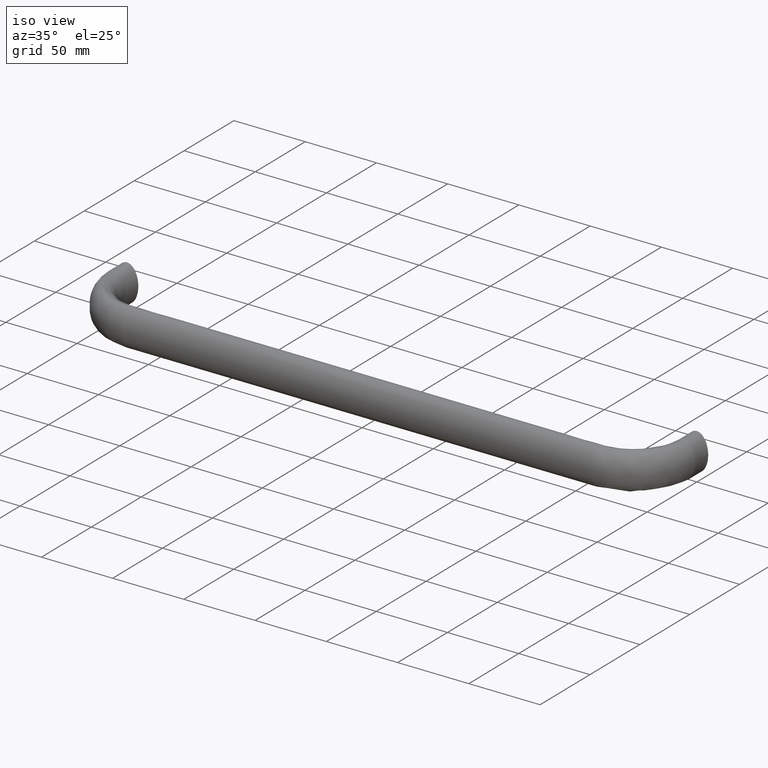
[diagram: clean part render]
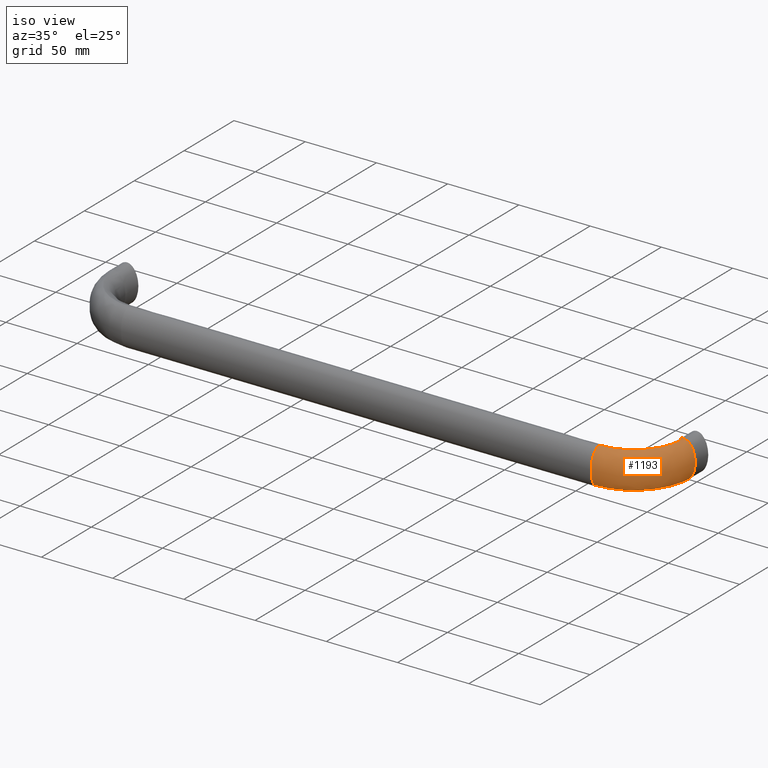
[diagram: same view with one face highlighted and labeled with its STEP entity id]
A machine part, iso view. The second image highlights one B-rep face of the part: STEP entity #1193.
In plain terms, the highlighted face is a freeform B-spline surface patch.
Its self-contained STEP definition (entity closure, byte-faithful):
#899=CARTESIAN_POINT('',(400.0,-13.0,13.0));
#900=VERTEX_POINT('',#899);
#908=CARTESIAN_POINT('',(404.702026031346290,-13.0,-10.516608836256710));
#909=VERTEX_POINT('',#908);
#910=CARTESIAN_POINT('',(404.702026031346290,-13.0,-10.516608836256710));
#911=CARTESIAN_POINT('',(405.040959230750500,-13.0,-10.116656518417621));
#912=CARTESIAN_POINT('',(405.360662054242880,-13.0,-9.673700472705884));
#913=CARTESIAN_POINT('',(407.137815228878480,-13.0,-6.785826563922671));
#914=CARTESIAN_POINT('',(408.0,-13.0,-3.403392041388941));
#915=CARTESIAN_POINT('',(408.0,-13.0,3.403392041388945));
#916=CARTESIAN_POINT('',(407.137815228878480,-13.0,6.785826563922671));
#917=CARTESIAN_POINT('',(404.916373759799510,-13.0,10.395668951176340));
#918=CARTESIAN_POINT('',(404.028951842966990,-13.0,11.359223048605340));
#919=CARTESIAN_POINT('',(402.093983074874470,-13.0,12.661644796688099));
#920=CARTESIAN_POINT('',(401.047197551196520,-13.0,13.0));
#921=CARTESIAN_POINT('',(400.0,-13.0,13.0));
#922=B_SPLINE_CURVE_WITH_KNOTS('',3,(#910,#911,#912,#913,#914,#915,#916,#917,#918,#919,#920,#921),.UNSPECIFIED.,.F.,.U.,(4,2,2,2,2,4),(0.600000000052966,0.625000000000000,0.750000000000000,0.875000000000000,0.937500000000000,1.0),.UNSPECIFIED.);
#923=EDGE_CURVE('',#909,#900,#922,.T.);
#1024=CARTESIAN_POINT('',(365.0,-52.702026030269117,-10.516608837527739));
#1025=CARTESIAN_POINT('',(365.0,-53.040959229395668,-10.116656520294541));
#1026=CARTESIAN_POINT('',(365.0,-53.360662053615137,-9.673700473725608));
#1027=CARTESIAN_POINT('',(365.0,-55.137815228878502,-6.785826563922671));
#1028=CARTESIAN_POINT('',(365.0,-56.0,-3.403392041388941));
#1029=CARTESIAN_POINT('',(365.0,-56.0,3.403392041388945));
#1030=CARTESIAN_POINT('',(365.0,-55.137815228878502,6.785826563922671));
#1031=CARTESIAN_POINT('',(365.0,-52.916373759799299,10.395668951176340));
#1032=CARTESIAN_POINT('',(365.0,-52.028951842967203,11.359223048605340));
#1033=CARTESIAN_POINT('',(365.0,-50.093983074874203,12.661644796688099));
#1034=CARTESIAN_POINT('',(365.0,-49.047197551196597,13.0));
#1035=CARTESIAN_POINT('',(365.0,-48.0,13.0));
#1036=CARTESIAN_POINT('',(370.197832790003420,-52.701986561494763,-10.516608837527739));
#1037=CARTESIAN_POINT('',(370.242206295993530,-53.040919265955779,-10.116656520294541));
#1038=CARTESIAN_POINT('',(370.284062140216180,-53.360621621347363,-9.673700473725608));
#1039=CARTESIAN_POINT('',(370.516728982144510,-55.137772177372803,-6.785826563922671));
#1040=CARTESIAN_POINT('',(370.629607157548490,-55.999955664275902,-3.403392041388941));
#1041=CARTESIAN_POINT('',(370.629607157548490,-55.999955664275902,3.403392041388945));
#1042=CARTESIAN_POINT('',(370.516728982144510,-55.137772177372803,6.785826563922671));
#1043=CARTESIAN_POINT('',(370.225895429733610,-52.916333982357898,10.395668951176340));
#1044=CARTESIAN_POINT('',(370.109713179547500,-52.028913358659501,11.359223048605340));
#1045=CARTESIAN_POINT('',(369.856384947094000,-50.093947378889602,12.661644796688099));
#1046=CARTESIAN_POINT('',(369.719338638655470,-49.047163344776813,13.0));
#1047=CARTESIAN_POINT('',(369.582238387206080,-47.999967262404901,13.0));
#1048=CARTESIAN_POINT('',(375.391921456345070,-51.668688504635632,-10.516608837527739));
#1049=CARTESIAN_POINT('',(375.480636505344020,-51.998800179312731,-10.116656520294541));
#1050=CARTESIAN_POINT('',(375.564318044329130,-52.310181994295803,-9.673700473725608));
#1051=CARTESIAN_POINT('',(376.029484134343480,-54.041080626693400,-6.785826563922671));
#1052=CARTESIAN_POINT('',(376.255159177119480,-54.880825034756199,-3.403392041388941));
#1053=CARTESIAN_POINT('',(376.255159177119480,-54.880825034756199,3.403392041388945));
#1054=CARTESIAN_POINT('',(376.029484134343480,-54.041080626709302,6.785826563922671));
#1055=CARTESIAN_POINT('',(375.448026521825510,-51.877457336212302,10.395668951176340));
#1056=CARTESIAN_POINT('',(375.215745709427490,-51.013132637800702,11.359223048605340));
#1057=CARTESIAN_POINT('',(374.709271721378000,-49.128525930261098,12.661644796688099));
#1058=CARTESIAN_POINT('',(374.435277821626020,-48.108985433380901,13.0));
#1059=CARTESIAN_POINT('',(374.161176074402820,-47.089043632954393,13.0));
#1060=CARTESIAN_POINT('',(384.994693729877890,-47.691089992556300,-10.516608837527739));
#1061=CARTESIAN_POINT('',(385.165386920847480,-47.987245209002360,-10.116656520294541));
#1062=CARTESIAN_POINT('',(385.326395330080520,-48.266597185584132,-9.673700473725608));
#1063=CARTESIAN_POINT('',(386.221403393962480,-49.819449442713100,-6.785826563922671));
#1064=CARTESIAN_POINT('',(386.655616006278020,-50.572814761214403,-3.403392041388941));
#1065=CARTESIAN_POINT('',(386.655616006278020,-50.572814761214403,3.403392041388945));
#1066=CARTESIAN_POINT('',(386.221403393962480,-49.819449442697199,6.785826563922671));
#1067=CARTESIAN_POINT('',(385.102643314110030,-47.878384121285997,10.395668951176340));
#1068=CARTESIAN_POINT('',(384.655720796329490,-47.102966928371401,11.359223048605340));
#1069=CARTESIAN_POINT('',(383.681233804992470,-45.412217554131601,12.661644796688099));
#1070=CARTESIAN_POINT('',(383.154052750442470,-44.497550610502053,13.0));
#1071=CARTESIAN_POINT('',(382.626664191153620,-43.582523642835604,13.0));
#1072=CARTESIAN_POINT('',(389.398749979083680,-44.748393686684693,-10.516608837527739));
#1073=CARTESIAN_POINT('',(389.607040265799180,-45.019427326912250,-10.116656520294541));
#1074=CARTESIAN_POINT('',(389.803512588642490,-45.275083074010418,-9.673700473725608));
#1075=CARTESIAN_POINT('',(390.895656248174480,-46.696213537388303,-6.785826563922671));
#1076=CARTESIAN_POINT('',(391.425509073508980,-47.385674108581703,-3.403392041388941));
#1077=CARTESIAN_POINT('',(391.425509073508980,-47.385674108581703,3.403392041388945));
#1078=CARTESIAN_POINT('',(390.895656248174480,-46.696213537388303,6.785826563922671));
#1079=CARTESIAN_POINT('',(389.530476673759490,-44.919800458165952,10.395668951176340));
#1080=CARTESIAN_POINT('',(388.985114443196490,-44.210158578413598,11.359223048605340));
#1081=CARTESIAN_POINT('',(387.795985728338510,-42.662828218666156,12.661644796688099));
#1082=CARTESIAN_POINT('',(387.152687115535510,-41.825748547051958,13.0));
#1083=CARTESIAN_POINT('',(386.509135292397100,-40.988339390709008,13.0));
#1084=CARTESIAN_POINT('',(396.748393686612590,-37.398749979011477,-10.516608837527739));
#1085=CARTESIAN_POINT('',(397.019427326840510,-37.607040265727193,-10.116656520294541));
#1086=CARTESIAN_POINT('',(397.275083073937420,-37.803512588569212,-9.673700473725608));
#1087=CARTESIAN_POINT('',(398.696213537277000,-38.895656248063197,-6.785826563922671));
#1088=CARTESIAN_POINT('',(399.385674108533980,-39.425509073461299,-3.403392041388941));
#1089=CARTESIAN_POINT('',(399.385674108533980,-39.425509073461299,3.403392041388945));
#1090=CARTESIAN_POINT('',(398.696213537277000,-38.895656248063197,6.785826563922671));
#1091=CARTESIAN_POINT('',(396.919800458102490,-37.530476673695702,10.395668951176340));
#1092=CARTESIAN_POINT('',(396.210158578334020,-36.985114443116899,11.359223048605340));
#1093=CARTESIAN_POINT('',(394.662828218586980,-35.795985728258948,12.661644796688099));
#1094=CARTESIAN_POINT('',(393.825748546908980,-35.152687115392403,13.0));
#1095=CARTESIAN_POINT('',(392.988339390661510,-34.509135292349249,13.0));
#1096=CARTESIAN_POINT('',(399.691089992463110,-32.994693730027159,-10.516608837527739));
#1097=CARTESIAN_POINT('',(399.987245208899310,-33.165386921005897,-10.116656520294541));
#1098=CARTESIAN_POINT('',(400.266597185469610,-33.326395330249177,-9.673700473725608));
#1099=CARTESIAN_POINT('',(401.819449442586010,-34.221403394169300,-6.785826563922671));
#1100=CARTESIAN_POINT('',(402.572814761182490,-34.655616006492501,-3.403392041388941));
#1101=CARTESIAN_POINT('',(402.572814761182490,-34.655616006492501,3.403392041388945));
#1102=CARTESIAN_POINT('',(401.819449442586010,-34.221403394161356,6.785826563922671));
#1103=CARTESIAN_POINT('',(399.878384121190490,-33.102643314277103,10.395668951176340));
#1104=CARTESIAN_POINT('',(399.102966928323500,-32.655720796448762,11.359223048605340));
#1105=CARTESIAN_POINT('',(397.412217553988510,-31.681233805127651,12.661644796688099));
#1106=CARTESIAN_POINT('',(396.497550610375010,-31.154052750665151,13.0));
#1107=CARTESIAN_POINT('',(395.582523642740280,-30.626664191328331,13.0));
#1108=CARTESIAN_POINT('',(403.668688504728720,-23.391921456195838,-10.516608837527739));
#1109=CARTESIAN_POINT('',(403.998800179415580,-23.480636505185540,-10.116656520294541));
#1110=CARTESIAN_POINT('',(404.310181994410070,-23.564318044160508,-9.673700473725608));
#1111=CARTESIAN_POINT('',(406.041080626820470,-24.029484134136951,-6.785826563922671));
#1112=CARTESIAN_POINT('',(406.880825034788020,-24.255159176905149,-3.403392041388941));
#1113=CARTESIAN_POINT('',(406.880825034788020,-24.255159176905149,3.403392041388945));
#1114=CARTESIAN_POINT('',(406.041080626820470,-24.029484134144901,6.785826563922671));
#1115=CARTESIAN_POINT('',(403.877457336307490,-23.448026521658448,10.395668951176340));
#1116=CARTESIAN_POINT('',(403.013132637848510,-23.215745709308148,11.359223048605340));
#1117=CARTESIAN_POINT('',(401.128525930404010,-22.709271721243098,12.661644796688099));
#1118=CARTESIAN_POINT('',(400.108985433508000,-22.435277821403499,13.0));
#1119=CARTESIAN_POINT('',(399.089043633049810,-22.161176074227850,13.0));
#1120=CARTESIAN_POINT('',(404.701986561451800,-18.197832790115118,-10.516608837527739));
#1121=CARTESIAN_POINT('',(405.040919265917130,-18.242206296111970,-10.116656520294541));
#1122=CARTESIAN_POINT('',(405.360621621309920,-18.284062140342261,-9.673700473725608));
#1123=CARTESIAN_POINT('',(407.137772177320980,-18.516728982299501,-6.785826563922671));
#1124=CARTESIAN_POINT('',(407.999955664135480,-18.629607157709351,-3.403392041388941));
#1125=CARTESIAN_POINT('',(407.999955664135480,-18.629607157709351,3.403392041388945));
#1126=CARTESIAN_POINT('',(407.137772177320980,-18.516728982293500,6.785826563922671));
#1127=CARTESIAN_POINT('',(404.916333982306980,-18.225895429858902,10.395668951176340));
#1128=CARTESIAN_POINT('',(404.028913358609490,-18.109713179636898,11.359223048605340));
#1129=CARTESIAN_POINT('',(402.093947378775000,-17.856384947195501,12.661644796688099));
#1130=CARTESIAN_POINT('',(401.047163344696000,-17.719338638822450,13.0));
#1131=CARTESIAN_POINT('',(399.999967262340990,-17.582238387337100,13.0));
#1132=CARTESIAN_POINT('',(404.702026030269220,-13.0,-10.516608837527739));
#1133=CARTESIAN_POINT('',(405.040959229395810,-13.0,-10.116656520294541));
#1134=CARTESIAN_POINT('',(405.360662053615270,-13.0,-9.673700473725608));
#1135=CARTESIAN_POINT('',(407.137815228878480,-13.0,-6.785826563922671));
#1136=CARTESIAN_POINT('',(408.0,-13.0,-3.403392041388941));
#1137=CARTESIAN_POINT('',(408.0,-13.0,3.403392041388945));
#1138=CARTESIAN_POINT('',(407.137815228878480,-13.0,6.785826563922671));
#1139=CARTESIAN_POINT('',(404.916373759799510,-13.0,10.395668951176340));
#1140=CARTESIAN_POINT('',(404.028951842966990,-13.0,11.359223048605340));
#1141=CARTESIAN_POINT('',(402.093983074874470,-13.0,12.661644796688099));
#1142=CARTESIAN_POINT('',(401.047197551196520,-13.0,13.0));
#1143=CARTESIAN_POINT('',(400.0,-13.0,13.0));
#1144=B_SPLINE_SURFACE_WITH_KNOTS('',3,3,((#1024,#1036,#1048,#1060,#1072,#1084,#1096,#1108,#1120,#1132),(#1025,#1037,#1049,#1061,#1073,#1085,#1097,#1109,#1121,#1133),(#1026,#1038,#1050,#1062,#1074,#1086,#1098,#1110,#1122,#1134),(#1027,#1039,#1051,#1063,#1075,#1087,#1099,#1111,#1123,#1135),(#1028,#1040,#1052,#1064,#1076,#1088,#1100,#1112,#1124,#1136),(#1029,#1041,#1053,#1065,#1077,#1089,#1101,#1113,#1125,#1137),(#1030,#1042,#1054,#1066,#1078,#1090,#1102,#1114,#1126,#1138),(#1031,#1043,#1055,#1067,#1079,#1091,#1103,#1115,#1127,#1139),(#1032,#1044,#1056,#1068,#1080,#1092,#1104,#1116,#1128,#1140),(#1033,#1045,#1057,#1069,#1081,#1093,#1105,#1117,#1129,#1141),(#1034,#1046,#1058,#1070,#1082,#1094,#1106,#1118,#1130,#1142),(#1035,#1047,#1059,#1071,#1083,#1095,#1107,#1119,#1131,#1143)),.UNSPECIFIED.,.F.,.F.,.U.,(4,2,2,2,2,4),(4,2,2,2,4),(0.0,1.997216543655273,11.983299261931631,21.969381980207991,26.962423339346170,31.955464698484349),(0.0,16.779484111108310,33.558968222216691,50.338452333325712,67.117936444434079),.UNSPECIFIED.);
#1145=ORIENTED_EDGE('',*,*,#923,.T.);
#1146=CARTESIAN_POINT('',(365.0,-48.0,13.0));
#1147=VERTEX_POINT('',#1146);
#1148=CARTESIAN_POINT('',(365.0,-48.0,13.0));
#1149=CARTESIAN_POINT('',(369.582238387206080,-47.999967262404901,13.0));
#1150=CARTESIAN_POINT('',(374.161176074402820,-47.089043632954393,13.0));
#1151=CARTESIAN_POINT('',(382.626664191153620,-43.582523642835604,13.0));
#1152=CARTESIAN_POINT('',(386.509135292397100,-40.988339390709008,13.0));
#1153=CARTESIAN_POINT('',(392.988339390661510,-34.509135292349249,13.0));
#1154=CARTESIAN_POINT('',(395.582523642740280,-30.626664191328331,13.0));
#1155=CARTESIAN_POINT('',(399.089043633049810,-22.161176074227850,13.0));
#1156=CARTESIAN_POINT('',(399.999967262340990,-17.582238387337100,13.0));
#1157=CARTESIAN_POINT('',(400.0,-13.0,13.0));
#1158=B_SPLINE_CURVE_WITH_KNOTS('',3,(#1148,#1149,#1150,#1151,#1152,#1153,#1154,#1155,#1156,#1157),.UNSPECIFIED.,.F.,.U.,(4,2,2,2,4),(0.854110883968730,0.883608251625648,0.913105619282566,0.942602986939485,0.972100354596403),.UNSPECIFIED.);
#1159=EDGE_CURVE('',#1147,#900,#1158,.T.);
#1160=ORIENTED_EDGE('',*,*,#1159,.F.);
#1161=CARTESIAN_POINT('',(365.0,-52.702026031346250,-10.516608836256699));
#1162=VERTEX_POINT('',#1161);
#1163=CARTESIAN_POINT('',(365.0,-52.702026031346250,-10.516608836256699));
#1164=CARTESIAN_POINT('',(365.0,-53.040959230750353,-10.116656518417599));
#1165=CARTESIAN_POINT('',(365.0,-53.360662054242667,-9.673700472705871));
#1166=CARTESIAN_POINT('',(365.0,-55.137815228878502,-6.785826563922671));
#1167=CARTESIAN_POINT('',(365.0,-56.0,-3.403392041388941));
#1168=CARTESIAN_POINT('',(365.0,-56.0,3.403392041388945));
#1169=CARTESIAN_POINT('',(365.0,-55.137815228878502,6.785826563922671));
#1170=CARTESIAN_POINT('',(365.0,-52.916373759799299,10.395668951176340));
#1171=CARTESIAN_POINT('',(365.0,-52.028951842967203,11.359223048605340));
#1172=CARTESIAN_POINT('',(365.0,-50.093983074874203,12.661644796688099));
#1173=CARTESIAN_POINT('',(365.0,-49.047197551196597,13.0));
#1174=CARTESIAN_POINT('',(365.0,-48.0,13.0));
#1175=B_SPLINE_CURVE_WITH_KNOTS('',3,(#1163,#1164,#1165,#1166,#1167,#1168,#1169,#1170,#1171,#1172,#1173,#1174),.UNSPECIFIED.,.F.,.U.,(4,2,2,2,2,4),(0.600000000052966,0.625000000000000,0.750000000000000,0.875000000000000,0.937500000000000,1.0),.UNSPECIFIED.);
#1176=EDGE_CURVE('',#1162,#1147,#1175,.T.);
#1177=ORIENTED_EDGE('',*,*,#1176,.F.);
#1178=CARTESIAN_POINT('',(365.0,-52.702026031346250,-10.516608836256699));
#1179=CARTESIAN_POINT('',(370.197832790003420,-52.701986561494763,-10.516608837527739));
#1180=CARTESIAN_POINT('',(375.391921456345070,-51.668688504635632,-10.516608837527739));
#1181=CARTESIAN_POINT('',(384.994693729877890,-47.691089992556293,-10.516608837527739));
#1182=CARTESIAN_POINT('',(389.398749979083680,-44.748393686684700,-10.516608837527739));
#1183=CARTESIAN_POINT('',(396.748393686612590,-37.398749979011477,-10.516608837527739));
#1184=CARTESIAN_POINT('',(399.691089992463110,-32.994693730027159,-10.516608837527739));
#1185=CARTESIAN_POINT('',(403.668688504728610,-23.391921456195838,-10.516608837527739));
#1186=CARTESIAN_POINT('',(404.701986561451800,-18.197832790115118,-10.516608837527739));
#1187=CARTESIAN_POINT('',(404.702026031346290,-13.0,-10.516608836256710));
#1188=B_SPLINE_CURVE_WITH_KNOTS('',3,(#1178,#1179,#1180,#1181,#1182,#1183,#1184,#1185,#1186,#1187),.UNSPECIFIED.,.F.,.U.,(4,2,2,2,4),(0.854110883968730,0.883608251625648,0.913105619282566,0.942602986939485,0.972100354596403),.UNSPECIFIED.);
#1189=EDGE_CURVE('',#1162,#909,#1188,.T.);
#1190=ORIENTED_EDGE('',*,*,#1189,.T.);
#1191=EDGE_LOOP('',(#1145,#1160,#1177,#1190));
#1192=FACE_OUTER_BOUND('',#1191,.T.);
#1193=ADVANCED_FACE('',(#1192),#1144,.F.);